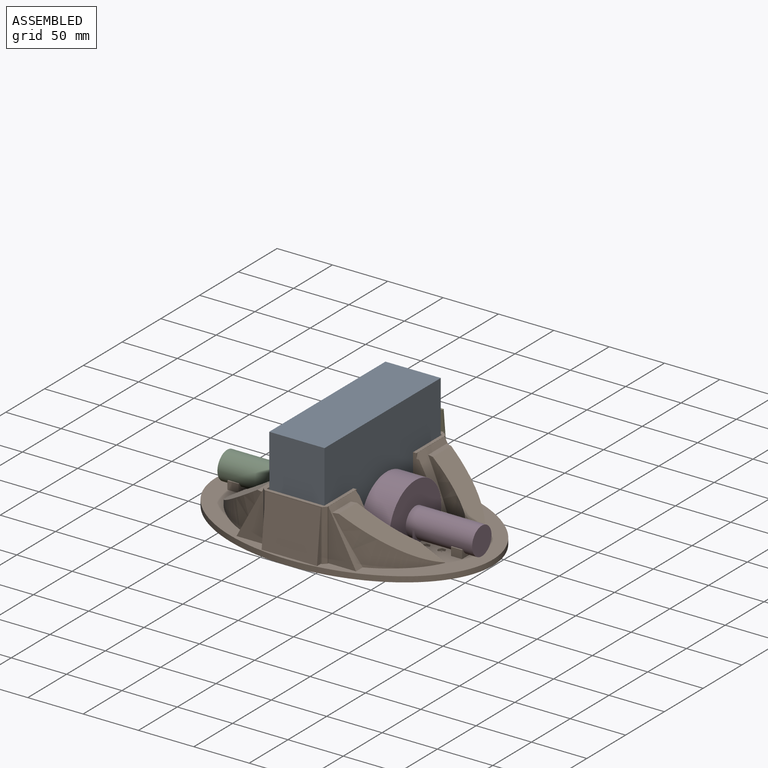
[diagram: assembled view]
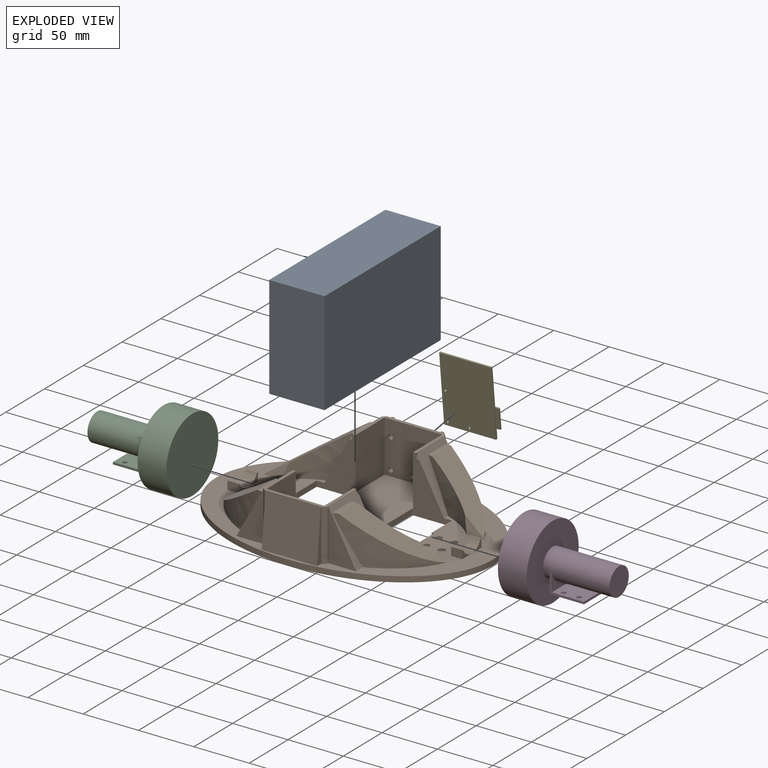
[diagram: exploded view]
GUIDED TOUR — FREECAD ASSEMBLY "chassis-v1"

This assembly has 5 components, labeled P0..P4 below (a component is one placed body or linked part; the same part can appear more than once), held together by 0 modeled joints plus 4 derived contact edges. A joint is a constraint between two components; its type names the relative motion it leaves free:
  CONTACT — a derived adjacency edge — the two components touch in the source model (clearance under 2% of the assembly's diagonal); it is measured from the geometry, not a modeled constraint.
Axis/direction vectors are unit vectors and 'through' points are millimeter coordinates, both in the assembly's world frame.

MATES
  1. CONTACT "contact_0_1": P0 <-> P1, contact direction (0.000, 0.000, -1.000) through (25.76, 75.01, 5.01) mm (derived from contact, not a modeled constraint)
  2. CONTACT "contact_1_2": P1 <-> P2, contact direction (-1.000, 0.000, 0.000) through (-63.00, -12.50, 0.00) mm (derived from contact, not a modeled constraint)
  3. CONTACT "contact_1_3": P1 <-> P3, contact direction (1.000, 0.000, 0.000) through (63.04, 12.54, -0.21) mm (derived from contact, not a modeled constraint)
  4. CONTACT "contact_1_4": P1 <-> P4, contact direction (-0.019, 0.990, 0.143) through (-19.79, 86.49, 10.50) mm (derived from contact, not a modeled constraint)

ASSEMBLY ORDER
  1. P1 — the base component [order heuristic]
  2. P2 — core [order heuristic]
  3. P3 — core [order heuristic]
  4. P0 [order verified]
  5. P4 [order verified]
Order-tag legend:
  [order verified] — this step's position reverses a verified removal order: the component was checked to insert without passing through the ones already placed.
  [order heuristic] — the first 3 components form the assembly's core: parts whose collision-free extraction could not be verified, listed in mate-graph order.

Of the 5 components, 5 carry a construction recipe — the FreeCAD feature program (sketches with constraints, then the solid features that consume them) that regenerates the part from scratch, quoted from this document or from the linked companion document it references; the rest are supplied as boundary geometry only. The tour below walks the components in assembly order: each is shown spotlighted twice — in the assembled view, then in the exploded view, where a leader line traces a displaced component back to its assembled socket (components that stay in place when exploded have no leader line; saturated green if recipe-attached, orange if geometry-only; every other component desaturated gray) — followed by its recipe or geometry summary and the mates that hold it.
NOTE — document 2 of 2 of this assembly tour. The two overview renders and the header above are repeated from document 1; the component sections below continue where the previous document stopped.
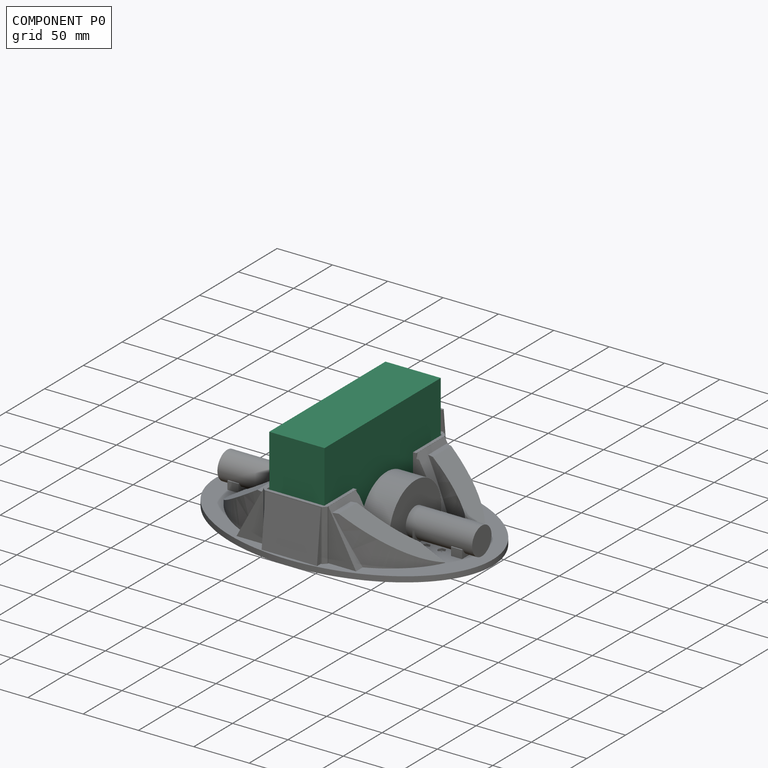
[diagram: component P0 — assembled]
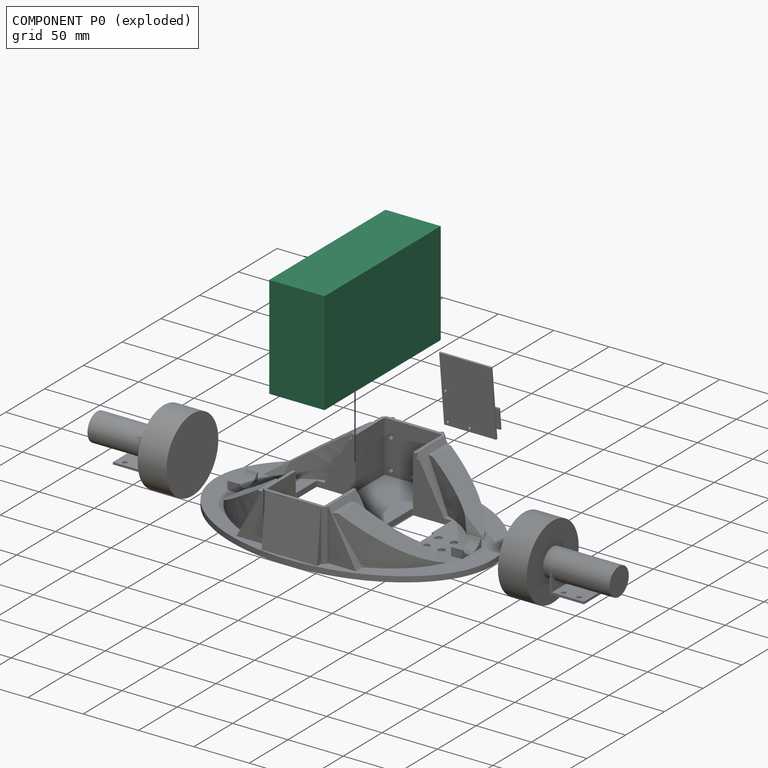
[diagram: component P0 — exploded]
COMPONENT P0 — recipe-attached ("Battery", a linked part whose construction recipe lives in a companion FreeCAD document of the same project; that document's serialized recipe follows).
Held by: resting contact with P1 (derived edge).
Construction recipe (the companion document, serialized — sketch geometry with constraints, then the solid features built on it; lengths are millimeters unless a unit is written):

FCSTD DOCUMENT  (FreeCAD 1.0RUnknown)
Label: common-components
License: All rights reserved
LicenseURL: https://en.wikipedia.org/wiki/All_rights_reserved
objects: Sketcher::SketchObject×24, PartDesign::Pad×17, PartDesign::Body×9, PartDesign::Pocket×7, App::Part×7, Spreadsheet::Sheet×7, PartDesign::Plane×1, PartDesign::PolarPattern×1, PartDesign::Fillet×1, App::Link×1
note: 135 computed .brp shape members not serialized (recipe doc carries the construction recipe); baked Part::Feature solids carry a one-line shape summary decoded from their .brp

FEATURE [Sketcher::SketchObject] Sketch005
  ArcFitTolerance = 0
  AttachmentSupport = -> [YZ_Plane005]
  FullyConstrained = false
  MakeInternals = false
  MapMode = 5
  Placement = pos=(0,0,0) rot=(0.57735,0.57735,0.57735;2.0944rad)
  expr: Constraints[11] = <<dc_motor_dim>>.motor_diameter
  sketch-geometry (8):
    g0: ArcOfCircle CenterX=0 CenterY=0 CenterZ=0 NormalX=0 NormalY=0 NormalZ=1 AngleXU=0 Radius=12.5 StartAngle=0 EndAngle=3.14159
    g1: LineSegment [constr] StartX=-13.5 StartY=0 StartZ=0 EndX=13.5 EndY=0 EndZ=0
    g2: LineSegment StartX=13.5 StartY=0 StartZ=0 EndX=13.5 EndY=13.5 EndZ=0
    g3: LineSegment StartX=13.5 StartY=13.5 StartZ=0 EndX=-13.5 EndY=13.5 EndZ=0
    g4: LineSegment StartX=-13.5 StartY=13.5 StartZ=0 EndX=-13.5 EndY=0 EndZ=0
    g5: GeomPoint [constr] X=1.6e-15 Y=12.5 Z=0
    g6: LineSegment StartX=-13.5 StartY=0 StartZ=0 EndX=-12.5 EndY=1.5e-15 EndZ=0
    g7: LineSegment StartX=12.5 StartY=0 StartZ=0 EndX=13.5 EndY=0 EndZ=0
  constraints (21):
    c: Coincident(g0,g-1)
    c: PointOnObject(g0,g-1)
    c: Coincident(g1,g2)
    c: Coincident(g2,g3)
    c: Coincident(g3,g4)
    c: Coincident(g4,g1)
    c: Horizontal(g1)
    c: Horizontal(g3)
    c: Vertical(g2)
    c: Vertical(g4)
    c: PointOnObject(g5,g0)
    c: Diameter(g0) = 25
    c: PointOnObject(g2,g-1)
    c: DistanceY(g5,g2) = 1
    c: DistanceX(g0,g2) = 1
    c: DistanceX(g4,g0) = 1
    c: Coincident(g6,g4)
    c: Coincident(g7,g0)
    c: Coincident(g7,g2)
    c: Horizontal(g7)
    c: Coincident(g6,g0)
FEATURE [Sketcher::SketchObject] Sketch004
  ArcFitTolerance = 0
  AttachmentSupport = -> [XZ_Plane005]
  FullyConstrained = true
  MakeInternals = false
  MapMode = 5
  Placement = pos=(0,0,0) rot=(1,0,0;1.5708rad)
  expr: Constraints[12] = <<dc_motor_dim>>.motor_diameter / 2 + 20
  sketch-geometry (6):
    g0: LineSegment StartX=-6 StartY=12.5 StartZ=0 EndX=-6 EndY=-20 EndZ=0
    g1: LineSegment StartX=-6 StartY=-20 StartZ=0 EndX=-37 EndY=-20 EndZ=0
    g2: LineSegment StartX=-37 StartY=-20 StartZ=0 EndX=-37 EndY=-18 EndZ=0
    g3: LineSegment StartX=-37 StartY=-18 StartZ=0 EndX=-8 EndY=-18 EndZ=0
    g4: LineSegment StartX=-8 StartY=-18 StartZ=0 EndX=-8 EndY=12.5 EndZ=0
    g5: LineSegment StartX=-6 StartY=12.5 StartZ=0 EndX=-8 EndY=12.5 EndZ=0
  constraints (18):
    c: Vertical(g0)
    c: Coincident(g1,g0)
    c: Horizontal(g1)
    c: Coincident(g2,g1)
    c: Coincident(g3,g2)
    c: Horizontal(g3)
    c: Vertical(g2)
    c: Coincident(g4,g3)
    c: Vertical(g4)
    c: Distance(g2) = 2
    c: DistanceX(g0,g-1) = 6
    c: DistanceY(g0,g-1) = 20
    c: Distance(g0) = 32.5
    c: Coincident(g5,g0)
    c: Horizontal(g5)
    c: Coincident(g4,g5)
    c: DistanceX(g4,g-1) = 8
    c: Distance(g1) = 31
FEATURE [Sketcher::SketchObject] Sketch003
  ArcFitTolerance = 0
  AttachmentSupport = -> [YZ_Plane005]
  FullyConstrained = true
  MakeInternals = false
  MapMode = 5
  Placement = pos=(0,0,0) rot=(0.57735,0.57735,0.57735;2.0944rad)
  expr: Constraints[1] = <<dc_motor_dim>>.motor_diameter
  sketch-geometry (1):
    g0: Circle CenterX=0 CenterY=0 CenterZ=0 NormalX=0 NormalY=0 NormalZ=1 AngleXU=0 Radius=12.5
  constraints (2):
    c: Coincident(g0,g-1)
    c: Diameter(g0) = 25
FEATURE [Sketcher::SketchObject] Sketch002
  ArcFitTolerance = 0
  AttachmentSupport = -> [YZ_Plane005]
  FullyConstrained = true
  MakeInternals = false
  MapMode = 5
  Placement = pos=(0,0,0) rot=(0.57735,0.57735,0.57735;2.0944rad)
  expr: Constraints[1] = <<dc_motor_dim>>.wheel_diameter
  sketch-geometry (1):
    g0: Circle CenterX=0 CenterY=0 CenterZ=0 NormalX=0 NormalY=0 NormalZ=1 AngleXU=0 Radius=33.5
  constraints (2):
    c: Coincident(g0,g-1)
    c: Diameter(g0) = 67
FEATURE [PartDesign::Pad] Pad002
  Direction = (1,0,0)
  Length = 26
  Length2 = 10
  Placement = pos=(0,0,0) rot=(0.57735,0.57735,0.57735;2.0944rad)
  Profile = -> Sketch002
  ReferenceAxis = -> Sketch002 [N_Axis]
  Suppressed = false
  Type = 0
  expr: Length = <<dc_motor_dim>>.wheel_width
FEATURE [PartDesign::Pad] Pad003
  BaseFeature = -> Pad002
  Direction = (1,0,0)
  Length = 60
  Length2 = 10
  Placement = pos=(0,0,0) rot=(0.57735,0.57735,0.57735;2.0944rad)
  Profile = -> Sketch003
  ReferenceAxis = -> Sketch003 [N_Axis]
  Reversed = true
  Suppressed = false
  Type = 0
  expr: Length = <<dc_motor_dim>>.motor_length
FEATURE [PartDesign::Pad] Pad004
  BaseFeature = -> Pad003
  Direction = (0,-1,2e-16)
  Length = 25
  Length2 = 10
  Midplane = true
  Placement = pos=(0,0,0) rot=(0.57735,0.57735,0.57735;2.0944rad)
  Profile = -> Sketch004
  ReferenceAxis = -> Sketch004 [N_Axis]
  Suppressed = false
  Type = 0
  expr: Length = <<dc_motor_dim>>.motor_diameter
FEATURE [PartDesign::Pocket] Pocket
  BaseFeature = -> Pad004
  Direction = (-1,0,0)
  Length = 10
  Length2 = 5
  Placement = pos=(0,0,0) rot=(0.57735,0.57735,0.57735;2.0944rad)
  Profile = -> Sketch005
  ReferenceAxis = -> Sketch005 [N_Axis]
  Suppressed = false
  Type = 0
FEATURE [Sketcher::SketchObject] Sketch024
  ArcFitTolerance = 0
  AttachmentSupport = -> [Pocket]
  FullyConstrained = true
  MakeInternals = false
  MapMode = 5
  Placement = pos=(0,-8.8e-15,-20) rot=(0.707107,0.707107,0;3.14159rad)
  expr: Constraints[13] = <<dc_motor_dim>>.bracket_hole_diameter
  expr: Constraints[14] = <<dc_motor_dim>>.bracket_hole_width
  expr: Constraints[15] = <<dc_motor_dim>>.bracket_hole_length
  expr: Constraints[27] = <<dc_motor_dim>>.bracket_length / 2 + <<dc_motor_dim>>.bracket_thickness - 2.5
  sketch-geometry (12):
    g0: Circle CenterX=8 CenterY=-15.5 CenterZ=0 NormalX=0 NormalY=0 NormalZ=1 AngleXU=0 Radius=2
    g1: Circle CenterX=-8 CenterY=-15.5 CenterZ=0 NormalX=0 NormalY=0 NormalZ=1 AngleXU=0 Radius=2
    g2: Circle CenterX=-8 CenterY=-29.5 CenterZ=0 NormalX=0 NormalY=0 NormalZ=1 AngleXU=0 Radius=2
    g3: Circle CenterX=8 CenterY=-29.5 CenterZ=0 NormalX=0 NormalY=0 NormalZ=1 AngleXU=0 Radius=2
    g4: LineSegment [constr] StartX=-8 StartY=-15.5 StartZ=0 EndX=-8 EndY=-29.5 EndZ=0
    g5: LineSegment [constr] StartX=-8 StartY=-29.5 StartZ=0 EndX=8 EndY=-29.5 EndZ=0
    g6: LineSegment [constr] StartX=-8 StartY=-15.5 StartZ=0 EndX=8 EndY=-15.5 EndZ=0
    g7: GeomPoint [constr] X=0 Y=-15.5 Z=0
    g8: LineSegment [constr] StartX=0 StartY=-15.5 StartZ=0 EndX=0 EndY=-8 EndZ=0
    g9: LineSegment [constr] StartX=0 StartY=-8 StartZ=0 EndX=0 EndY=0 EndZ=0
    g10: LineSegment [constr] StartX=0 StartY=-15.5 StartZ=0 EndX=0 EndY=-29.5 EndZ=0
    g11: GeomPoint [constr] X=0 Y=-22.5 Z=0
  constraints (28):
    c: Equal(g1,g0)
    c: Equal(g0,g2)
    c: Equal(g2,g3)
    c: Coincident(g4,g1)
    c: Coincident(g4,g2)
    c: Coincident(g5,g2)
    c: Coincident(g5,g3)
    c: Coincident(g6,g1)
    c: Coincident(g6,g0)
    c: Horizontal(g6)
    c: Vertical(g4)
    c: Horizontal(g5)
    c: Equal(g6,g5)
    c: Diameter(g1) = 4
    c: Distance(g6) = 16
    c: Distance(g4) = 14
    c: Symmetric(g6,g6,g7)
    c: PointOnObject(g7,g-2)
    c: Coincident(g8,g7)
    c: Coincident(g9,g-1)
    c: Coincident(g8,g9)
    c: Vertical(g9)
    c: Distance(g9) = 8
    c: Coincident(g10,g7)
    c: PointOnObject(g10,g5)
    c: Vertical(g10)
    c: Symmetric(g10,g10,g11)
    c: DistanceY(g11,g8) = 14.5
FEATURE [PartDesign::Pocket] Pocket007
  BaseFeature = -> Pocket
  Direction = (0,0,1)
  Length = 2
  Length2 = 5
  Placement = pos=(0,0,0) rot=(0.57735,0.57735,0.57735;2.0944rad)
  Profile = -> Sketch024
  ReferenceAxis = -> Sketch024 [N_Axis]
  Suppressed = false
  Type = 0
  expr: Length = <<dc_motor_dim>>.bracket_thickness
FEATURE [PartDesign::Body] Body002  label="DC Motor 1"
  AllowCompound = false
  Group = -> [Sketch002,Pad002,Sketch003,Pad003,Sketch004,Pad004,Sketch005,Pocket,Sketch024,Pocket007]
  Origin = -> Origin005
  Placement = pos=(-87,-84.5,25) rot=(0,0,1;4.71239rad)
  Tip = -> Pocket007
FEATURE [PartDesign::Plane] DatumPlane002
  AttachmentOffset = pos=(0,0,-8) rot=(0,0,1;0rad)
  AttachmentSupport = -> [XZ_Plane016]
  Length = 80.3208
  MapMode = 5
  Placement = pos=(0,8,-1.8e-15) rot=(1,0,0;1.5708rad)
  ResizeMode = 0
  Width = 80.3553
FEATURE [Sketcher::SketchObject] Sketch036
  ArcFitTolerance = 0
  AttachmentSupport = -> [DatumPlane002]
  FullyConstrained = true
  MakeInternals = false
  MapMode = 5
  Placement = pos=(0,8,-1.8e-15) rot=(1,0,0;1.5708rad)
  sketch-geometry (2):
    g0: Circle CenterX=0 CenterY=0 CenterZ=0 NormalX=0 NormalY=0 NormalZ=1 AngleXU=0 Radius=23
    g1: Circle CenterX=0 CenterY=0 CenterZ=0 NormalX=0 NormalY=0 NormalZ=1 AngleXU=0 Radius=5.5
  constraints (4):
    c: Coincident(g0,g-1)
    c: Diameter(g0) = 46
    c: Coincident(g1,g0)
    c: Diameter(g1) = 11
FEATURE [Sketcher::SketchObject] Sketch035
  ArcFitTolerance = 0
  AttachmentSupport = -> [XZ_Plane016]
  FullyConstrained = true
  MakeInternals = false
  MapMode = 5
  Placement = pos=(0,0,0) rot=(1,0,0;1.5708rad)
  expr: Constraints[15] = <<bl_motor_dim>>.bracket_screw_diameter
  expr: Constraints[16] = <<bl_motor_dim>>.bracket_hole_width
  expr: Constraints[17] = <<bl_motor_dim>>.bracket_hole_length
  sketch-geometry (8):
    g0: Circle CenterX=-1.994e-13 CenterY=-9.5 CenterZ=0 NormalX=0 NormalY=0 NormalZ=1 AngleXU=0 Radius=1.5
    g1: Circle CenterX=8 CenterY=0 CenterZ=0 NormalX=0 NormalY=0 NormalZ=1 AngleXU=0 Radius=1.5
    g2: Circle CenterX=0 CenterY=9.5 CenterZ=0 NormalX=0 NormalY=0 NormalZ=1 AngleXU=0 Radius=1.5
    g3: Circle CenterX=-8 CenterY=0 CenterZ=0 NormalX=0 NormalY=0 NormalZ=1 AngleXU=0 Radius=1.5
    g4: Circle [constr] CenterX=0 CenterY=0 CenterZ=0 NormalX=0 NormalY=0 NormalZ=1 AngleXU=0 Radius=9.5
    g5: Circle [constr] CenterX=0 CenterY=0 CenterZ=0 NormalX=0 NormalY=0 NormalZ=1 AngleXU=0 Radius=8
    g6: LineSegment [constr] StartX=-1.994e-13 StartY=-9.5 StartZ=0 EndX=0 EndY=9.5 EndZ=0
    g7: LineSegment [constr] StartX=-8 StartY=0 StartZ=0 EndX=8 EndY=0 EndZ=0
  constraints (20):
    c: Coincident(g4,g-1)
    c: PointOnObject(g0,g4)
    c: Coincident(g5,g4)
    c: PointOnObject(g3,g5)
    c: Coincident(g6,g0)
    c: Coincident(g6,g2)
    c: Coincident(g7,g3)
    c: Coincident(g7,g1)
    c: PointOnObject(g1,g5)
    c: PointOnObject(g2,g4)
    c: PointOnObject(g4,g6)
    c: PointOnObject(g4,g7)
    c: Equal(g1,g3)
    c: Equal(g0,g2)
    c: Equal(g0,g1)
    c: Diameter(g0) = 3
    c: Diameter(g5) = 16
    c: Diameter(g4) = 19
    c: PointOnObject(g1,g-1)
    c: PointOnObject(g2,g-2)
FEATURE [Sketcher::SketchObject] Sketch034
  ArcFitTolerance = 0
  AttachmentSupport = -> [DatumPlane002]
  FullyConstrained = true
  MakeInternals = false
  MapMode = 5
  Placement = pos=(0,8,-1.8e-15) rot=(1,0,0;1.5708rad)
  expr: Constraints[1] = <<bl_motor_dim>>.wheel_diameter
  sketch-geometry (1):
    g0: Circle CenterX=0 CenterY=0 CenterZ=0 NormalX=0 NormalY=0 NormalZ=1 AngleXU=0 Radius=33.5
  constraints (2):
    c: Coincident(g0,g-1)
    c: Diameter(g0) = 67
FEATURE [Sketcher::SketchObject] Sketch032
  ArcFitTolerance = 0
  AttachmentSupport = -> [YZ_Plane016]
  FullyConstrained = true
  MakeInternals = false
  MapMode = 5
  Placement = pos=(0,0,0) rot=(0.57735,0.57735,0.57735;2.0944rad)
  expr: Constraints[10] = 3.18 / 2
  sketch-geometry (4):
    g0: LineSegment StartX=3 StartY=1.21412 StartZ=0 EndX=15 EndY=1.21412 EndZ=0
    g1: LineSegment StartX=15 StartY=1.21412 StartZ=0 EndX=15 EndY=1.59 EndZ=0
    g2: LineSegment StartX=15 StartY=1.59 StartZ=0 EndX=2.86319 EndY=1.59 EndZ=0
    g3: LineSegment StartX=2.86319 StartY=1.59 StartZ=0 EndX=3 EndY=1.21412 EndZ=0
  constraints (12):
    c: Horizontal(g0)
    c: Coincident(g1,g0)
    c: Coincident(g2,g1)
    c: Horizontal(g2)
    c: Coincident(g3,g2)
    c: Coincident(g3,g0)
    c: DistanceX(g0,g0) = 12
    c: Distance(g3) = 0.4
    c: Angle(g0,g3) = 1.91986
    c: Vertical(g1)
    c: DistanceY(g-1,g2) = 1.59
    c: DistanceX(g-1,g0) = 15
FEATURE [Sketcher::SketchObject] Sketch031
  ArcFitTolerance = 0
  AttachmentSupport = -> [XZ_Plane016]
  FullyConstrained = true
  MakeInternals = false
  MapMode = 5
  Placement = pos=(0,0,0) rot=(1,0,0;1.5708rad)
  sketch-geometry (1):
    g0: Circle CenterX=0 CenterY=0 CenterZ=0 NormalX=0 NormalY=0 NormalZ=1 AngleXU=0 Radius=1.5875
  constraints (2):
    c: Coincident(g0,g-1)
    c: Diameter(g0) = 3.175
FEATURE [Sketcher::SketchObject] Sketch030
  ArcFitTolerance = 0
  AttachmentSupport = -> [XZ_Plane016]
  FullyConstrained = true
  MakeInternals = false
  MapMode = 5
  Placement = pos=(0,0,0) rot=(1,0,0;1.5708rad)
  expr: Constraints[1] = <<bl_motor_dim>>.motor_diameter
  sketch-geometry (1):
    g0: Circle CenterX=0 CenterY=0 CenterZ=0 NormalX=0 NormalY=0 NormalZ=1 AngleXU=0 Radius=14.5
  constraints (2):
    c: Coincident(g0,g-1)
    c: Diameter(g0) = 29
FEATURE [PartDesign::Pad] Pad018
  Direction = (0,-1,2e-16)
  Length = 47
  Length2 = 10
  Placement = pos=(0,0,0) rot=(1,0,0;1.5708rad)
  Profile = -> Sketch030
  ReferenceAxis = -> Sketch030 [N_Axis]
  Suppressed = false
  Type = 0
  expr: Length = <<bl_motor_dim>>.motor_length
FEATURE [PartDesign::Pad] Pad019
  BaseFeature = -> Pad018
  Direction = (0,-1,2e-16)
  Length = 15
  Length2 = 10
  Placement = pos=(0,0,0) rot=(1,0,0;1.5708rad)
  Profile = -> Sketch031
  ReferenceAxis = -> Sketch031 [N_Axis]
  Reversed = true
  Suppressed = false
  Type = 0
FEATURE [PartDesign::Pocket] Pocket012
  BaseFeature = -> Pad019
  Direction = (-1,0,0)
  Length = 10
  Length2 = 5
  Midplane = true
  Placement = pos=(0,0,0) rot=(1,0,0;1.5708rad)
  Profile = -> Sketch032
  ReferenceAxis = -> Sketch032 [N_Axis]
  Suppressed = false
  Type = 0
FEATURE [Sketcher::SketchObject] Sketch033
  ArcFitTolerance = 0
  AttachmentSupport = -> [Pocket012]
  FullyConstrained = true
  MakeInternals = false
  MapMode = 5
  Placement = pos=(0,15,-3.3e-15) rot=(-1,0,0;1.5708rad)
  sketch-geometry (1):
    g0: Circle CenterX=0 CenterY=0 CenterZ=0 NormalX=0 NormalY=0 NormalZ=1 AngleXU=0 Radius=5.5
  constraints (2):
    c: Coincident(g0,g-1)
    c: Diameter(g0) = 11
FEATURE [PartDesign::Pad] Pad020
  BaseFeature = -> Pocket012
  Direction = (0,1,2e-16)
  Length = 11
  Length2 = 10
  Placement = pos=(0,0,0) rot=(1,0,0;1.5708rad)
  Profile = -> Sketch033
  ReferenceAxis = -> Sketch033 [N_Axis]
  Reversed = true
  Suppressed = false
  Type = 0
FEATURE [PartDesign::Pad] Pad021
  BaseFeature = -> Pad020
  Direction = (0,-1,2e-16)
  Length = 26
  Length2 = 10
  Placement = pos=(0,0,0) rot=(1,0,0;1.5708rad)
  Profile = -> Sketch034
  ReferenceAxis = -> Sketch034 [N_Axis]
  Reversed = true
  Suppressed = false
  Type = 0
  expr: Length = <<bl_motor_dim>>.wheel_width
FEATURE [PartDesign::Pocket] Pocket013
  BaseFeature = -> Pad021
  Direction = (0,1,-2e-16)
  Length = 7.5
  Length2 = 5
  Placement = pos=(0,0,0) rot=(1,0,0;1.5708rad)
  Profile = -> Sketch035
  ReferenceAxis = -> Sketch035 [N_Axis]
  Reversed = true
  Suppressed = false
  Type = 0
FEATURE [PartDesign::Pocket] Pocket014
  BaseFeature = -> Pocket013
  Direction = (0,1,-2e-16)
  Length = 11
  Length2 = 5
  Placement = pos=(0,0,0) rot=(1,0,0;1.5708rad)
  Profile = -> Sketch036
  ReferenceAxis = -> Sketch036 [N_Axis]
  Suppressed = false
  Type = 0
FEATURE [PartDesign::Body] Body010  label="BL Motor car 1"
  AllowCompound = false
  Group = -> [Sketch030,Pad018,Sketch031,Pad019,Sketch032,Pocket012,Sketch033,Pad020,DatumPlane002,Sketch034,Pad021,Sketch035,Pocket013,Sketch036,Pocket014]
  Origin = -> Origin016
  Placement = pos=(-1,-113,22.5) rot=(0,0,1;3.14159rad)
  Tip = -> Pocket014
FEATURE [Sketcher::SketchObject] Sketch052
  ArcFitTolerance = 0
  AttachmentSupport = -> [XZ_Plane022]
  FullyConstrained = false
  MakeInternals = false
  MapMode = 5
  Placement = pos=(0,0,0) rot=(1,0,0;1.5708rad)
  expr: Constraints[97] = <<drone_motor_dim>>.bracket_screw_diameter
  sketch-geometry (44):
    g0: Circle [constr] CenterX=0 CenterY=0 CenterZ=0 NormalX=0 NormalY=0 NormalZ=1 AngleXU=0 Radius=20.5
    g1: ArcOfCircle CenterX=0 CenterY=16.9985 CenterZ=0 NormalX=0 NormalY=0 NormalZ=1 AngleXU=0 Radius=3.50149 StartAngle=0.0291986 EndAngle=3.11239
    g2: ArcOfCircle CenterX=0 CenterY=-16.9985 CenterZ=0 NormalX=0 NormalY=0 NormalZ=1 AngleXU=0 Radius=3.50149 StartAngle=3.14271 EndAngle=6.25399
    g3: ArcOfCircle CenterX=-17 CenterY=0 CenterZ=0 NormalX=0 NormalY=0 NormalZ=1 AngleXU=0 Radius=3.5 StartAngle=1.5708 EndAngle=4.71239
    g4: ArcOfCircle CenterX=17 CenterY=0 CenterZ=0 NormalX=0 NormalY=0 NormalZ=1 AngleXU=0 Radius=3.5 StartAngle=4.71238 EndAngle=7.85398
    g5: GeomPoint [constr] X=20.5 Y=0 Z=0
    g6: GeomPoint [constr] X=-20.5 Y=-3.4401e-06 Z=0
    g7: GeomPoint [constr] X=-0.00272726 Y=-20.5 Z=0
    g8: GeomPoint [constr] X=-0.000240899 Y=20.5 Z=0
    g9: LineSegment [constr] StartX=-3.5 StartY=17.1007 StartZ=0 EndX=3.5 EndY=17.1007 EndZ=0
    g10: LineSegment [constr] StartX=-17 StartY=3.5 StartZ=0 EndX=-17 EndY=-3.5 EndZ=0
    g11: LineSegment StartX=-8.5 StartY=3.5 StartZ=0 EndX=-17 EndY=3.5 EndZ=0
    g12: LineSegment StartX=-3.5 StartY=17.1007 StartZ=0 EndX=-3.5 EndY=8.5 EndZ=0
    g13: LineSegment StartX=3.5 StartY=8.5 StartZ=0 EndX=3.5 EndY=17.1007 EndZ=0
    g14: LineSegment StartX=17 StartY=3.5 StartZ=0 EndX=8.5 EndY=3.5 EndZ=0
    g15: LineSegment [constr] StartX=3.5 StartY=3.5 StartZ=0 EndX=-3.5 EndY=3.5 EndZ=0
    g16: LineSegment StartX=8.5 StartY=-3.5 StartZ=0 EndX=17 EndY=-3.5 EndZ=0
    g17: LineSegment StartX=-17 StartY=-3.5 StartZ=0 EndX=-8.50149 EndY=-3.5 EndZ=0
    g18: LineSegment [constr] StartX=-3.50149 StartY=-3.5 StartZ=0 EndX=3.5 EndY=-3.5 EndZ=0
    g19: LineSegment [constr] StartX=-3.5 StartY=3.5 StartZ=0 EndX=-3.5 EndY=-3.5 EndZ=0
    g20: LineSegment StartX=-3.50149 StartY=-8.5 StartZ=0 EndX=-3.50149 EndY=-17.0024 EndZ=0
    g21: LineSegment StartX=3.5 StartY=-17.1007 StartZ=0 EndX=3.5 EndY=-8.5 EndZ=0
    g22: LineSegment [constr] StartX=3.5 StartY=-3.5 StartZ=0 EndX=3.5 EndY=3.5 EndZ=0
    g23: ArcOfCircle CenterX=-8.5 CenterY=8.5 CenterZ=0 NormalX=0 NormalY=0 NormalZ=1 AngleXU=0 Radius=5 StartAngle=4.71239 EndAngle=6.28319
    g24: ArcOfCircle CenterX=8.5 CenterY=8.5 CenterZ=0 NormalX=0 NormalY=0 NormalZ=1 AngleXU=0 Radius=5 StartAngle=3.14159 EndAngle=4.71239
    g25: ArcOfCircle CenterX=8.5 CenterY=-8.5 CenterZ=0 NormalX=0 NormalY=0 NormalZ=1 AngleXU=0 Radius=5 StartAngle=1.5708 EndAngle=3.14159
    g26: ArcOfCircle CenterX=-8.50149 CenterY=-8.5 CenterZ=0 NormalX=0 NormalY=0 NormalZ=1 AngleXU=0 Radius=5 StartAngle=0 EndAngle=1.5708
    g27: LineSegment [constr] StartX=-8.50149 StartY=-8.5 StartZ=0 EndX=-8.50149 EndY=-3.5 EndZ=0
    g28: LineSegment [constr] StartX=8.5 StartY=-8.5 StartZ=0 EndX=8.5 EndY=-3.5 EndZ=0
    g29: LineSegment [constr] StartX=8.5 StartY=3.5 StartZ=0 EndX=8.5 EndY=8.5 EndZ=0
    g30: LineSegment [constr] StartX=-8.5 StartY=3.5 StartZ=0 EndX=-8.5 EndY=8.5 EndZ=0
    g31: LineSegment [constr] StartX=-8.5 StartY=3.5 StartZ=0 EndX=-3.5 EndY=3.5 EndZ=0
    g32: LineSegment [constr] StartX=-3.5 StartY=8.5 StartZ=0 EndX=-3.5 EndY=3.5 EndZ=0
    g33: LineSegment [constr] StartX=-8.50149 StartY=-3.5 StartZ=0 EndX=-3.50149 EndY=-3.5 EndZ=0
    g34: LineSegment [constr] StartX=3.5 StartY=-3.5 StartZ=0 EndX=8.5 EndY=-3.5 EndZ=0
    g35: LineSegment [constr] StartX=3.5 StartY=3.5 StartZ=0 EndX=8.5 EndY=3.5 EndZ=0
    g36: LineSegment [constr] StartX=3.5 StartY=3.5 StartZ=0 EndX=3.5 EndY=8.5 EndZ=0
    g37: LineSegment [constr] StartX=3.5 StartY=-8.5 StartZ=0 EndX=3.5 EndY=-3.5 EndZ=0
    g38: LineSegment [constr] StartX=-3.50149 StartY=-8.5 StartZ=0 EndX=-3.50149 EndY=-3.5 EndZ=0
    g39: Circle CenterX=0 CenterY=16.9985 CenterZ=0 NormalX=0 NormalY=0 NormalZ=1 AngleXU=0 Radius=1.5
    g40: Circle CenterX=-17 CenterY=0 CenterZ=0 NormalX=0 NormalY=0 NormalZ=1 AngleXU=0 Radius=1.5
    g41: Circle CenterX=17 CenterY=0 CenterZ=0 NormalX=0 NormalY=0 NormalZ=1 AngleXU=0 Radius=1.5
    g42: Circle CenterX=0 CenterY=-16.4205 CenterZ=0 NormalX=0 NormalY=0 NormalZ=1 AngleXU=0 Radius=1.5
    g43: Circle CenterX=0 CenterY=0 CenterZ=0 NormalX=0 NormalY=0 NormalZ=1 AngleXU=0 Radius=5
  constraints (106):
    c: Coincident(g0,g-1)
    c: Diameter(g0) = 41
    c: Coincident(g1,g12) = -1.5708
    c: Coincident(g20,g2) = -1.5708
    c: Coincident(g2,g21) = -1.5708
    c: Coincident(g13,g1) = -1.5708
    c: Equal(g1,g2)
    c: PointOnObject(g1,g-2)
    c: Coincident(g3,g17) = -1.5708
    c: Coincident(g16,g4) = -1.5708
    c: Coincident(g4,g14) = -1.5708
    c: Coincident(g11,g3) = -1.5708
    c: Equal(g3,g4)
    c: PointOnObject(g3,g-1)
    c: PointOnObject(g5,g4)
    c: PointOnObject(g6,g3)
    c: PointOnObject(g7,g2)
    c: PointOnObject(g8,g1)
    c: PointOnObject(g4,g-1)
    c: PointOnObject(g2,g-2)
    c: PointOnObject(g8,g0)
    c: PointOnObject(g7,g0)
    c: PointOnObject(g5,g0)
    c: PointOnObject(g6,g0)
    c: Coincident(g9,g1)
    c: Coincident(g9,g1)
    c: Coincident(g10,g3)
    c: Coincident(g10,g3)
    c: Distance(g10) = 7
    c: Equal(g9,g10)
    c: PointOnObject(g22,g18)
    c: PointOnObject(g18,g22)
    c: PointOnObject(g19,g18)
    c: PointOnObject(g18,g20)
    c: PointOnObject(g15,g19)
    c: PointOnObject(g19,g15)
    c: PointOnObject(g22,g15)
    c: PointOnObject(g15,g22)
    c: Vertical(g13)
    c: Vertical(g12)
    c: Vertical(g20)
    c: Vertical(g21)
    c: Horizontal(g16)
    c: Horizontal(g14)
    c: Horizontal(g11)
    c: Horizontal(g17)
    c: Vertical(g10)
    c: Horizontal(g15)
    c: Horizontal(g18)
    c: PointOnObject(g5,g-1)
    c: PointOnObject(g3,g10)
    c: Tangent(g11,g23) = 1.5708
    c: Tangent(g12,g23) = 1.5708
    c: Tangent(g14,g24) = 1.5708
    c: Tangent(g13,g24) = 1.5708
    c: Tangent(g16,g25) = 1.5708
    c: Tangent(g21,g25) = 1.5708
    c: Tangent(g17,g26) = 1.5708
    c: Tangent(g20,g26) = 1.5708
    c: Coincident(g27,g26)
    c: Coincident(g27,g17)
    c: Coincident(g28,g25)
    c: Coincident(g28,g16)
    c: Coincident(g29,g14)
    c: Coincident(g29,g24)
    c: Coincident(g30,g11)
    c: Coincident(g30,g23)
    c: Distance(g27) = 5
    c: Equal(g30,g29)
    c: Equal(g29,g28)
    c: Equal(g28,g27)
    c: Coincident(g31,g11)
    c: Coincident(g31,g15)
    c: Coincident(g32,g12)
    c: Coincident(g32,g15)
    c: Coincident(g33,g17)
    c: Coincident(g33,g18)
    c: Coincident(g34,g18)
    c: Coincident(g34,g16)
    c: Tangent(g34,g25)
    c: Coincident(g35,g15)
    c: Coincident(g35,g14)
    c: Coincident(g36,g15)
    c: Coincident(g36,g13)
    c: Coincident(g37,g21)
    c: Coincident(g37,g18)
    c: Coincident(g38,g20)
    c: Coincident(g38,g18)
    c: Vertical(g22)
    c: Vertical(g37)
    c: Vertical(g32)
    c: Vertical(g19)
    c: Horizontal(g31)
    c: Vertical(g36)
    c: Horizontal(g33)
    c: Horizontal(g9)
    c: Coincident(g39,g1)
    c: Diameter(g39) = 3
    c: Coincident(g40,g3)
    c: Coincident(g41,g4)
    c: PointOnObject(g42,g-2)
    c: Equal(g42,g41)
    c: Equal(g41,g40)
    c: Equal(g40,g39)
    c: Coincident(g43,g0)
    c: Diameter(g43) = 10
FEATURE [PartDesign::Pad] Pad031  label="bracket"
  Direction = (0,-1,2e-16)
  Length = 2
  Length2 = 10
  Placement = pos=(0,0,0) rot=(1,0,0;1.5708rad)
  Profile = -> Sketch052
  ReferenceAxis = -> Sketch052 [N_Axis]
  Suppressed = false
  Type = 0
FEATURE [Sketcher::SketchObject] Sketch053
  ArcFitTolerance = 0
  AttachmentSupport = -> [Pad031]
  FullyConstrained = true
  MakeInternals = false
  MapMode = 5
  Placement = pos=(0,-2,4e-16) rot=(1,0,0;1.5708rad)
  sketch-geometry (1):
    g0: Circle CenterX=0 CenterY=0 CenterZ=0 NormalX=0 NormalY=0 NormalZ=1 AngleXU=0 Radius=14
  constraints (2):
    c: Coincident(g0,g-1)
    c: Diameter(g0) = 28
FEATURE [PartDesign::Pad] Pad032
  BaseFeature = -> Pad031
  Direction = (0,-1,2e-16)
  Length = 30
  Length2 = 10
  Placement = pos=(0,0,0) rot=(1,0,0;1.5708rad)
  Profile = -> Sketch053
  ReferenceAxis = -> Sketch053 [N_Axis]
  Suppressed = false
  Type = 0
FEATURE [Sketcher::SketchObject] Sketch054
  ArcFitTolerance = 0
  AttachmentSupport = -> [Pad032]
  FullyConstrained = true
  MakeInternals = false
  MapMode = 5
  Placement = pos=(0,-2,4e-16) rot=(-1,0,0;1.5708rad)
  sketch-geometry (1):
    g0: Circle CenterX=0 CenterY=0 CenterZ=0 NormalX=0 NormalY=0 NormalZ=1 AngleXU=0 Radius=1.5
  constraints (2):
    c: Coincident(g0,g-1)
    c: Diameter(g0) = 3
FEATURE [PartDesign::Pad] Pad033
  BaseFeature = -> Pad032
  Direction = (0,1,2e-16)
  Length = 14
  Length2 = 10
  Placement = pos=(0,0,0) rot=(1,0,0;1.5708rad)
  Profile = -> Sketch054
  ReferenceAxis = -> Sketch054 [N_Axis]
  Suppressed = false
  Type = 0
FEATURE [Sketcher::SketchObject] Sketch055
  ArcFitTolerance = 0
  AttachmentSupport = -> [Pad033]
  FullyConstrained = true
  MakeInternals = false
  MapMode = 5
  Placement = pos=(0,-32,7e-15) rot=(1,0,0;1.5708rad)
  sketch-geometry (1):
    g0: Circle CenterX=0 CenterY=0 CenterZ=0 NormalX=0 NormalY=0 NormalZ=1 AngleXU=0 Radius=2.5
  constraints (2):
    c: Coincident(g0,g-1)
    c: Diameter(g0) = 5
FEATURE [PartDesign::Pad] Pad034
  BaseFeature = -> Pad033
  Direction = (0,-1,2e-16)
  Length = 26
  Length2 = 10
  Placement = pos=(0,0,0) rot=(1,0,0;1.5708rad)
  Profile = -> Sketch055
  ReferenceAxis = -> Sketch055 [N_Axis]
  Suppressed = false
  Type = 0
FEATURE [PartDesign::Body] Body014  label="BL Motor drone 1"
  AllowCompound = false
  Group = -> [Sketch052,Pad031,Sketch053,Pad032,Sketch054,Pad033,Sketch055,Pad034]
  Origin = -> Origin022
  Placement = pos=(-1,-63.5,22.5) rot=(0,1,0;0.785398rad)
  Tip = -> Pad034
FEATURE [Sketcher::SketchObject] Sketch061
  ArcFitTolerance = 0
  AttachmentSupport = -> [XZ_Plane024]
  FullyConstrained = true
  MakeInternals = false
  MapMode = 5
  Placement = pos=(0,0,0) rot=(1,0,0;1.5708rad)
  sketch-geometry (1):
    g0: Circle CenterX=0 CenterY=0 CenterZ=0 NormalX=0 NormalY=0 NormalZ=1 AngleXU=0 Radius=2.5
  constraints (2):
    c: Coincident(g0,g-1)
    c: Diameter(g0) = 5
FEATURE [Sketcher::SketchObject] Sketch060
  ArcFitTolerance = 0
  AttachmentSupport = -> [XZ_Plane024]
  FullyConstrained = true
  MakeInternals = false
  MapMode = 5
  Placement = pos=(0,0,0) rot=(1,0,0;1.5708rad)
  expr: Constraints[13] = <<drone_motor_dim>>.wheel_diameter / 2
  expr: Constraints[3] = <<drone_motor_dim>>.wheel_diameter
  sketch-geometry (12):
    g0: Circle [constr] CenterX=0 CenterY=0 CenterZ=0 NormalX=0 NormalY=0 NormalZ=1 AngleXU=0 Radius=30
    g1: ArcOfCircle CenterX=30 CenterY=0 CenterZ=0 NormalX=0 NormalY=0 NormalZ=1 AngleXU=0 Radius=30 StartAngle=3.27249 EndAngle=4.01895
    g2: LineSegment [constr] StartX=10.8245 StartY=-23.0716 StartZ=0 EndX=8.26777 EndY=-26.1478 EndZ=0
    g3: LineSegment [constr] StartX=10.8245 StartY=-23.0716 StartZ=0 EndX=30 EndY=0 EndZ=0
    g4: LineSegment [constr] StartX=30 StartY=0 StartZ=0 EndX=0.256654 EndY=-3.91579 EndZ=0
    g5: LineSegment [constr] StartX=0.256654 StartY=-3.91579 StartZ=0 EndX=0.15751 EndY=-3.92884 EndZ=0
    g6: ArcOfCircle CenterX=9.54613 CenterY=-24.6097 CenterZ=0 NormalX=0 NormalY=0 NormalZ=1 AngleXU=0 Radius=2 StartAngle=4.01895 EndAngle=7.16055
    g7: ArcOfCircle [constr] CenterX=30 CenterY=0 CenterZ=0 NormalX=0 NormalY=0 NormalZ=1 AngleXU=0 Radius=32 StartAngle=4.01895 EndAngle=4.14985
    g8: ArcOfCircle [constr] CenterX=30 CenterY=0 CenterZ=0 NormalX=0 NormalY=0 NormalZ=1 AngleXU=0 Radius=30.1 StartAngle=3.14159 EndAngle=3.27249
    g9: LineSegment [constr] StartX=12.9333 StartY=-27.069 StartZ=0 EndX=30 EndY=0 EndZ=0
    g10: ArcOfCircle CenterX=29.4271 CenterY=-5.83469 CenterZ=0 NormalX=0 NormalY=0 NormalZ=1 AngleXU=0 Radius=29.3316 StartAngle=3.07657 EndAngle=3.90659
    g11: ArcOfCircle CenterX=0.207082 CenterY=-3.92231 CenterZ=0 NormalX=0 NormalY=0 NormalZ=1 AngleXU=0 Radius=0.05 StartAngle=0.1309 EndAngle=3.27249
  constraints (34):
    c: Coincident(g0,g-1)
    c: PointOnObject(g1,g0)
    c: PointOnObject(g1,g-1)
    c: Diameter(g0) = 60
    c: Coincident(g2,g1)
    c: Coincident(g3,g1)
    c: Coincident(g3,g1)
    c: Parallel(g3,g2)
    c: Distance(g2) = 4
    c: Coincident(g4,g1)
    c: Coincident(g4,g1)
    c: Coincident(g5,g1)
    c: Parallel(g5,g4)
    c: Distance(g4) = 30
    c: Coincident(g6,g1)
    c: Coincident(g7,g1)
    c: Coincident(g7,g6)
    c: PointOnObject(g7,g0)
    c: Coincident(g8,g1)
    c: PointOnObject(g8,g-1)
    c: Angle(g-1,g4) = 0.1309
    c: Coincident(g9,g7)
    c: Coincident(g9,g1)
    c: Angle(g3,g9) = 0.1309
    c: PointOnObject(g10,g0)
    c: Coincident(g10,g8)
    c: Coincident(g10,g6)
    c: Coincident(g2,g6)
    c: Coincident(g10,g5)
    c: Distance(g5) = 0.1
    c: PointOnObject(g6,g2)
    c: Coincident(g11,g10)
    c: Coincident(g11,g1)
    c: PointOnObject(g11,g5)
FEATURE [Sketcher::SketchObject] Sketch059
  ArcFitTolerance = 0
  AttachmentSupport = -> [XZ_Plane024]
  FullyConstrained = true
  MakeInternals = false
  MapMode = 5
  Placement = pos=(0,0,0) rot=(1,0,0;1.5708rad)
  expr: Constraints[1] = <<drone_motor_dim>>.wheel_diameter
  sketch-geometry (1):
    g0: Circle CenterX=0 CenterY=0 CenterZ=0 NormalX=0 NormalY=0 NormalZ=1 AngleXU=0 Radius=30
  constraints (2):
    c: Coincident(g0,g-1)
    c: Diameter(g0) = 60
FEATURE [PartDesign::Pad] Pad036
  Direction = (0,-1,2e-16)
  Length = 9
  Length2 = 10
  Placement = pos=(0,0,0) rot=(1,0,0;1.5708rad)
  Profile = -> Sketch059
  ReferenceAxis = -> Sketch059 [N_Axis]
  Suppressed = false
  Type = 0
  expr: Length = <<drone_motor_dim>>.wheel_width_center
FEATURE [PartDesign::Pocket] Pocket022
  BaseFeature = -> Pad036
  Direction = (0,1,-2e-16)
  Length = 100
  Length2 = 5
  Placement = pos=(0,0,0) rot=(1,0,0;1.5708rad)
  Profile = -> Sketch060
  ReferenceAxis = -> Sketch060 [N_Axis]
  Reversed = true
  Suppressed = false
  Type = 0
FEATURE [PartDesign::PolarPattern] PolarPattern
  Angle = 360
  Axis = -> Sketch060 [N_Axis]
  BaseFeature = -> Pocket022
  Mode = 0
  Occurrences = 24
  Offset = 120
  Originals = -> [Pocket022]
  Placement = pos=(0,0,0) rot=(1,0,0;1.5708rad)
  Suppressed = false
  TransformMode = 0
FEATURE [PartDesign::Pocket] Pocket023
  BaseFeature = -> PolarPattern
  Direction = (0,1,-2e-16)
  Length = 100
  Length2 = 5
  Placement = pos=(0,0,0) rot=(1,0,0;1.5708rad)
  Profile = -> Sketch061
  ReferenceAxis = -> Sketch061 [N_Axis]
  Reversed = true
  Suppressed = false
  Type = 0
FEATURE [PartDesign::Fillet] Fillet
  Base = -> Pocket023 [Edge2,Edge3]
  BaseFeature = -> Pocket023
  Placement = pos=(0,0,0) rot=(1,0,0;1.5708rad)
  Radius = 1
  SupportTransform = false
  Suppressed = false
  UseAllEdges = false
FEATURE [PartDesign::Body] Body016  label="Drone wheel 1"
  AllowCompound = false
  Group = -> [Sketch059,Pad036,Sketch060,Pocket022,PolarPattern,Sketch061,Pocket023,Fillet]
  Origin = -> Origin024
  Placement = pos=(-1,-101,23) rot=(0,0,1;0rad)
  Tip = -> Fillet
FEATURE [Sketcher::SketchObject] Sketch001
  ArcFitTolerance = 0
  AttachmentSupport = -> [XY_Plane004]
  FullyConstrained = false
  MakeInternals = false
  MapMode = 5
  expr: Constraints[14] = <<battery_dim>>.length
  expr: Constraints[15] = <<battery_dim>>.width
  sketch-geometry (8):
    g0: LineSegment StartX=-25 StartY=75 StartZ=0 EndX=25 EndY=75 EndZ=0
    g1: LineSegment StartX=25 StartY=75 StartZ=0 EndX=25 EndY=-75 EndZ=0
    g2: LineSegment StartX=25 StartY=-75 StartZ=0 EndX=-25 EndY=-75 EndZ=0
    g3: LineSegment StartX=-25 StartY=-75 StartZ=0 EndX=-25 EndY=75 EndZ=0
    g4: LineSegment [constr] StartX=-25 StartY=-1e-16 StartZ=0 EndX=25 EndY=-1e-16 EndZ=0
    g5: GeomPoint [constr] X=-0.40862 Y=1.74876 Z=0
    g6: GeomPoint [constr] X=0 Y=75 Z=0
    g7: GeomPoint [constr] X=0 Y=-75 Z=0
  constraints (16):
    c: Coincident(g0,g1)
    c: Coincident(g1,g2)
    c: Coincident(g2,g3)
    c: Coincident(g3,g0)
    c: Horizontal(g0)
    c: Horizontal(g2)
    c: Vertical(g1)
    c: Vertical(g3)
    c: PointOnObject(g4,g1)
    c: Horizontal(g4)
    c: Symmetric(g0,g0,g6)
    c: Symmetric(g2,g1,g7)
    c: Symmetric(g7,g6,g-1)
    c: Symmetric(g0,g2,g4)
    c: Distance(g3) = 150
    c: Distance(g2) = 50
FEATURE [PartDesign::Pad] Pad001
  Direction = (0,0,1)
  Length = 93
  Length2 = 10
  Profile = -> Sketch001
  ReferenceAxis = -> Sketch001 [N_Axis]
  Suppressed = false
  Type = 0
  expr: Length = <<battery_dim>>.height
FEATURE [PartDesign::Body] Body001  label="Battery V1"
  AllowCompound = false
  Group = -> [Sketch001,Pad001]
  Origin = -> Origin004
  Tip = -> Pad001
FEATURE [App::Link] Link  label="Battery V2"
  LinkPlacement = pos=(4.06504e-05,-46.5,20) rot=(0.57735,0.57735,0.57735;4.18879rad)
  LinkedObject = -> Body001
  Placement = pos=(4.06504e-05,-46.5,20) rot=(0.57735,0.57735,0.57735;4.18879rad)
FEATURE [Sketcher::SketchObject] Sketch016
  ArcFitTolerance = 0
  AttachmentSupport = -> [XY_Plane010]
  FullyConstrained = true
  MakeInternals = false
  MapMode = 5
  expr: Constraints[11] = <<ender3_dim>>.width
  expr: Constraints[12] = <<ender3_dim>>.height
  sketch-geometry (6):
    g0: LineSegment StartX=-110 StartY=110 StartZ=0 EndX=110 EndY=110 EndZ=0
    g1: LineSegment StartX=110 StartY=110 StartZ=0 EndX=110 EndY=-110 EndZ=0
    g2: LineSegment StartX=110 StartY=-110 StartZ=0 EndX=-110 EndY=-110 EndZ=0
    g3: LineSegment StartX=-110 StartY=-110 StartZ=0 EndX=-110 EndY=110 EndZ=0
    g4: GeomPoint [constr] X=2.7e-15 Y=-110 Z=0
    g5: GeomPoint [constr] X=-2.7e-15 Y=110 Z=0
  constraints (13):
    c: Coincident(g0,g1)
    c: Coincident(g1,g2)
    c: Coincident(g2,g3)
    c: Coincident(g3,g0)
    c: Horizontal(g0)
    c: Horizontal(g2)
    c: Vertical(g1)
    c: Vertical(g3)
    c: Symmetric(g0,g0,g5)
    c: Symmetric(g2,g1,g4)
    c: Symmetric(g4,g5,g-1)
    c: Distance(g0) = 220
    c: Distance(g1) = 220
FEATURE [PartDesign::Pad] Pad013
  Direction = (0,0,1)
  Length = 5
  Length2 = 10
  Profile = -> Sketch016
  ReferenceAxis = -> Sketch016 [N_Axis]
  Reversed = true
  Suppressed = false
  Type = 0
FEATURE [PartDesign::Body] Body005  label="plate"
  AllowCompound = false
  Group = -> [Sketch016,Pad013]
  Origin = -> Origin010
  Tip = -> Pad013
FEATURE [Sketcher::SketchObject] Sketch022
  ArcFitTolerance = 0
  AttachmentSupport = -> [XY_Plane012]
  FullyConstrained = true
  MakeInternals = false
  MapMode = 5
  sketch-geometry (7):
    g0: LineSegment StartX=0 StartY=0 StartZ=0 EndX=61.6 EndY=0 EndZ=0
    g1: LineSegment StartX=61.6 StartY=0 StartZ=0 EndX=61.6 EndY=47 EndZ=0
    g2: LineSegment StartX=61.6 StartY=47 StartZ=0 EndX=0 EndY=47 EndZ=0
    g3: LineSegment StartX=0 StartY=47 StartZ=0 EndX=0 EndY=0 EndZ=0
    g4: Circle CenterX=3.175 CenterY=3.175 CenterZ=0 NormalX=0 NormalY=0 NormalZ=1 AngleXU=0 Radius=1.1
    g5: Circle CenterX=3.175 CenterY=22.86 CenterZ=0 NormalX=0 NormalY=0 NormalZ=1 AngleXU=0 Radius=1.1
    g6: Circle CenterX=29.845 CenterY=3.175 CenterZ=0 NormalX=0 NormalY=0 NormalZ=1 AngleXU=0 Radius=1.1
  constraints (20):
    c: Coincident(g0,g1)
    c: Coincident(g1,g2)
    c: Coincident(g2,g3)
    c: Coincident(g3,g0)
    c: Horizontal(g0)
    c: Horizontal(g2)
    c: Vertical(g1)
    c: Vertical(g3)
    c: Coincident(g0,g-1)
    c: Distance(g0) = 61.6
    c: Distance(g1) = 47
    c: Equal(g6,g4)
    c: Equal(g4,g5)
    c: Diameter(g4) = 2.2
    c: DistanceX(g0,g4) = 3.175
    c: DistanceX(g4,g5) = 0
    c: DistanceY(g0,g4) = 3.175
    c: DistanceY(g4,g6) = 0
    c: DistanceY(g0,g5) = 22.86
    c: DistanceX(g0,g6) = 29.845
FEATURE [PartDesign::Pad] Pad015
  Direction = (0,0,1)
  Length = 1.6
  Length2 = 10
  Profile = -> Sketch022
  ReferenceAxis = -> Sketch022 [N_Axis]
  Suppressed = false
  Type = 0
FEATURE [PartDesign::Body] Body006  label="PCB plate"
  AllowCompound = false
  Group = -> [Sketch022,Pad015]
  Origin = -> Origin012
  Tip = -> Pad015
FEATURE [Sketcher::SketchObject] Sketch023
  ArcFitTolerance = 0
  AttachmentSupport = -> [Pad015]
  FullyConstrained = true
  MakeInternals = false
  MapMode = 5
  Placement = pos=(0,0,1.6) rot=(0,0,1;0rad)
  expr: Constraints[10] = 3.21 + 47
  sketch-geometry (4):
    g0: LineSegment StartX=8.6 StartY=50.21 StartZ=0 EndX=26.6 EndY=50.21 EndZ=0
    g1: LineSegment StartX=26.6 StartY=50.21 StartZ=0 EndX=26.6 EndY=24.465 EndZ=0
    g2: LineSegment StartX=26.6 StartY=24.465 StartZ=0 EndX=8.6 EndY=24.465 EndZ=0
    g3: LineSegment StartX=8.6 StartY=24.465 StartZ=0 EndX=8.6 EndY=50.21 EndZ=0
  constraints (12):
    c: Coincident(g0,g1)
    c: Coincident(g1,g2)
    c: Coincident(g2,g3)
    c: Coincident(g3,g0)
    c: Horizontal(g0)
    c: Horizontal(g2)
    c: Vertical(g1)
    c: Vertical(g3)
    c: Distance(g0) = 18
    c: DistanceX(g-1,g2) = 8.6
    c: DistanceY(g-1,g0) = 50.21
    c: Distance(g3) = 25.745
FEATURE [PartDesign::Pad] Pad016
  Direction = (0,0,1)
  Length = 1.6
  Length2 = 10
  Profile = -> Sketch023
  ReferenceAxis = -> Sketch023 [N_Axis]
  Suppressed = false
  Type = 0
FEATURE [PartDesign::Body] Body007  label="ESP32 module"
  AllowCompound = false
  Group = -> [Sketch023,Pad016]
  Origin = -> Origin013
  Tip = -> Pad016
FEATURE [App::Part] Part005  label="PCB"
  Group = -> [Body006,Body007]
  Origin = -> Origin011
  Placement = pos=(66,42.5,0) rot=(0,0,1;0rad)
FEATURE [Spreadsheet::Sheet] Spreadsheet001  label="battery_dim"
  cells = A1='Width; B1(width)=50; C1='mm; A2='Length; B2(length)=150; C2='mm; A3='Height; B3(height)=93; C3='mm; A4='Tolerance; B4(tolerance)=1; C4='mm
FEATURE [App::Part] Part002  label="Battery"
  Group = -> [Body001,Link,Spreadsheet001]
  Origin = -> Origin003
  Placement = pos=(-180,-136,0) rot=(0,0,1;0rad)
FEATURE [Spreadsheet::Sheet] Spreadsheet002  label="dc_motor_dim"
  cells = A1='Wheel width; B1(wheel_width)=26; C1='mm; A2='Wheel diameter; B2(wheel_diameter)=67; C2='mm; A3='Wheel circumference; B3(wheel_circumference)==pi * wheel_diameter; C3='mm; A4='Wheel tolerance; B4(wheel_tolerance)=5; C4='mm; A5='Wheel bracket distance; B5(wheel_bracket_distance)=5; C5='mm; A6='Bracket thickness; B6(bracket_thickness)=2; C6='mm; A7='Bracket width; B7(bracket_width)==motor_diameter * 1; C7='mm; A8='Bracket length; B8(bracket_length)=30; C8='mm; A9='Bracket motor distance; B9(bracket_motor_distance)=5; C9='mm; A10='Bracket hole width; B10(bracket_hole_width)=16; C10='mm; A11='Bracket hole length (DC); B11(bracket_hole_length)=14; C11='mm; A12='Bracket hole diameter; B12(bracket_hole_diameter)=4; C12='mm; A13='Bracket screw diameter; B13(bracket_screw_diameter)=3; C13='mm; A14='Bracket nut size; B14(bracket_nut_size)=6; C14='mm; A15='Motor diameter; B15(motor_diameter)=25; C15='mm; A16='Motor length; B16(motor_length)=60; C16='mm; A17='Motor rpm; B17(motor_rpm)=280; C17='rpm; A18='Speed; B18(max_speed)==wheel_circumference / 1000 * motor_rpm / 60; C18='m/s
FEATURE [App::Part] Part  label="DC motor"
  Group = -> [Body002,Spreadsheet002]
  Origin = -> Origin025
  Placement = pos=(0,-42.5,0) rot=(0,0,1;0rad)
FEATURE [Spreadsheet::Sheet] Spreadsheet003  label="ender3_dim"
  cells = A1='Width; B1(width)=220; C1='mm; A2='Height; B2(height)=220; C2='mm; A3='Depth; B3(depth)=250; C3='mm
FEATURE [App::Part] Part004  label="Ender3 buildplate"
  Group = -> [Body005,Spreadsheet003]
  Origin = -> Origin009
  Placement = pos=(-95.5,105,0) rot=(0,0,1;0rad)
FEATURE [Spreadsheet::Sheet] Spreadsheet004  label="driver_dim"
  cells = A1='Width; B1(width)=42; C1='mm; A2='Depth; B2(depth)=29; C2='mm; A3='Height; B3(height)=30; C3='mm
FEATURE [Sketcher::SketchObject] Sketch
  ArcFitTolerance = 1e-06
  AttachmentSupport = -> [XY_Plane028]
  FullyConstrained = true
  MakeInternals = false
  MapMode = 5
  expr: Constraints[10] = <<driver_dim>>.width
  expr: Constraints[9] = <<driver_dim>>.depth
  sketch-geometry (4):
    g0: LineSegment StartX=0 StartY=0 StartZ=0 EndX=42 EndY=0 EndZ=0
    g1: LineSegment StartX=42 StartY=0 StartZ=0 EndX=42 EndY=29 EndZ=0
    g2: LineSegment StartX=42 StartY=29 StartZ=0 EndX=0 EndY=29 EndZ=0
    g3: LineSegment StartX=0 StartY=29 StartZ=0 EndX=0 EndY=0 EndZ=0
  constraints (11):
    c: Coincident(g0,g1)
    c: Coincident(g1,g2)
    c: Coincident(g2,g3)
    c: Coincident(g3,g0)
    c: Horizontal(g0)
    c: Horizontal(g2)
    c: Vertical(g1)
    c: Vertical(g3)
    c: Coincident(g0,g-1)
    c: DistanceY(g1,g1) = 29
    c: DistanceX(g2,g2) = 42
FEATURE [PartDesign::Pad] Pad
  Direction = (0,0,1)
  Length = 30
  Length2 = 10
  Profile = -> Sketch
  ReferenceAxis = -> Sketch [N_Axis]
  Refine = true
  Suppressed = false
  Type = 0
  expr: Length = <<driver_dim>>.height
FEATURE [PartDesign::Body] Body
  AllowCompound = false
  Group = -> [Sketch,Pad]
  Origin = -> Origin028
  Tip = -> Pad
FEATURE [App::Part] Part008  label="BL motor driver"
  Group = -> [Body,Spreadsheet004]
  Origin = -> Origin027
  Placement = pos=(75.5,136,0) rot=(0,0,1;0rad)
FEATURE [Spreadsheet::Sheet] Spreadsheet005  label="bl_motor_dim"
  cells = A1='Bracket hole length; B1(bracket_hole_length)=19; C1='mm; A2='Bracket hole width; B2(bracket_hole_width)=16; C2='mm; A3='Bracket thickness; B3(bracket_thickness)=2; C3='mm; A4='Bracket screw diameter; B4(bracket_screw_diameter)=3; C4='mm; A5='BL motor diameter; B5(motor_diameter)=29; C5='mm; A6='Motor length; B6(motor_length)=47; C6='mm; A7='Wheel width; B7(wheel_width)=26; C7='mm; A8='Wheel diameter; B8(wheel_diameter)=67; C8='mm; A9='Wheel circumference; B9(wheel_circumference)==pi * wheel_diameter; C9='mm; A10='Wheel tolerance; B10(wheel_tolerance)=5; C10='mm
FEATURE [App::Part] Part006  label="BL motor car"
  Group = -> [Body010,Spreadsheet005]
  Origin = -> Origin
FEATURE [Spreadsheet::Sheet] Spreadsheet006  label="drone_motor_dim"
  cells = A1='Drone motor behind bracket; B1(behind_bracket)=12; C1='mm; A2='Drone bracket width; B2(bracket_width)=31; C2='mm; A3='Drone wheel width center; B3(wheel_width_center)=9; C3='mm; A4='Drone wheel diameter; B4(wheel_diameter)=60; C4='mm; A5='Bracket screw diameter; B5(bracket_screw_diameter)=3; C5='mm; A6='Bracket hole distance drone; B6(bracket_hole_distance)=34; C6='mm
FEATURE [App::Part] Part007  label="Drone motor"
  Group = -> [Body014,Body016,Spreadsheet006]
  Origin = -> Origin026
  Placement = pos=(93,0,0) rot=(0,0,1;0rad)
FEATURE [Spreadsheet::Sheet] Spreadsheet  label="dim"
  cells = A1='Max weight; B1(max_weight)=4; C1='kg; A2='Max diameter; B2(max_diameter)=250; C2='mm; A3='Wall; B3(wall)=4; C3='mm
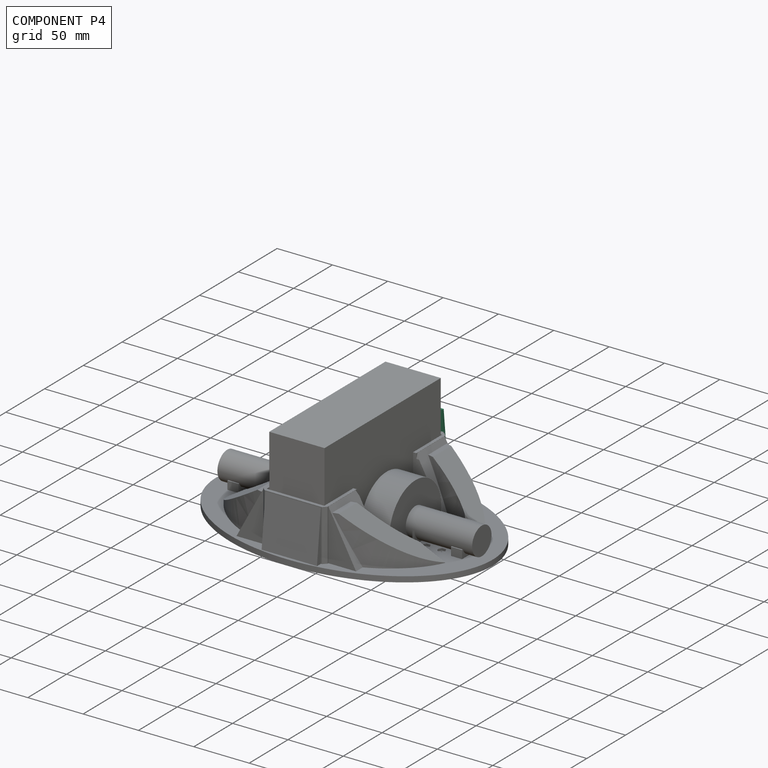
[diagram: component P4 — assembled]
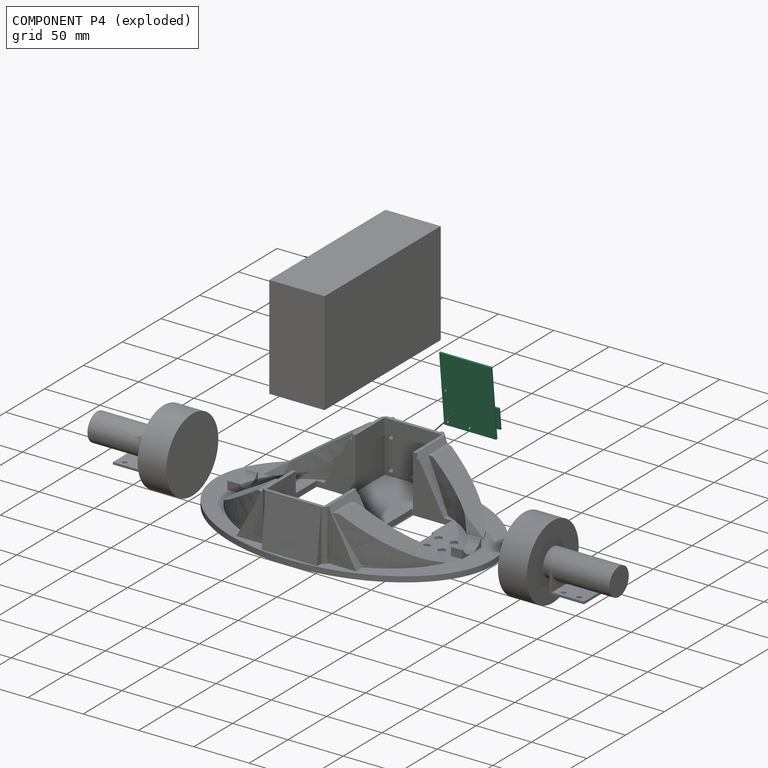
[diagram: component P4 — exploded]
COMPONENT P4 — same part as P0; its construction recipe is shown at P0.
Held by: resting contact with P1 (derived edge).
PROVENANCE & LICENSES
Assembly and component geometry: a FreeCAD (.FCStd) document from a public repository crawl; components, placements and joints were extracted with FreeCAD and each solid tessellated.
Construction recipes: the document's own serialized feature recipes (and, for linked parts, the recipes of companion documents from the same project).
License: as declared in the source repository (recorded in the dataset sidecar).
Joints: native FreeCAD joints and A2plus constraints are mapped to standard mate types; edges marked 'derived from contact' connect touching components and are measured from the geometry, not modeled.
Verification: 5 of this assembly's 5 components carry a construction recipe (3 from this document itself, 2 from linked companion documents in the same project); the rest are geometry-only. Every component's tessellation passed the extraction mesh gates (mesh-volume checksum against the B-rep where available, bounding-box inflation <= 2%).
Renders: orthographic iso camera (az 35 / el 25); the floor grid conveys scale (grid pitch printed in each image; no ruler). In the exploded view each component is displaced by its stored offset vector: the offsets alone carry the explosion direction (mate normal/axis signs are not orientation cues and do not encode it), and separation distances are assigned per mate-chain, not proportionally to assembly-order depth.
